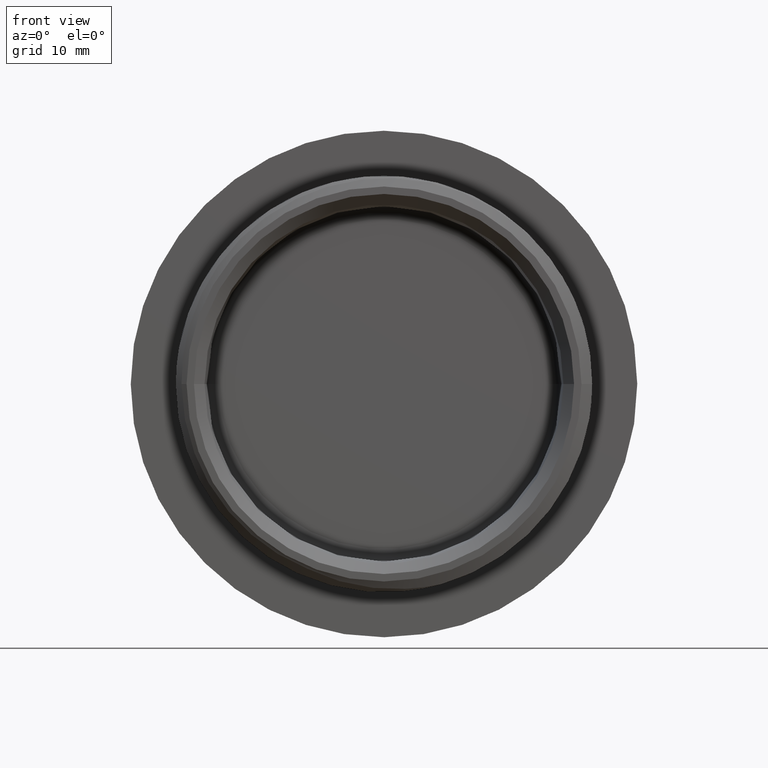
[diagram: clean part render]
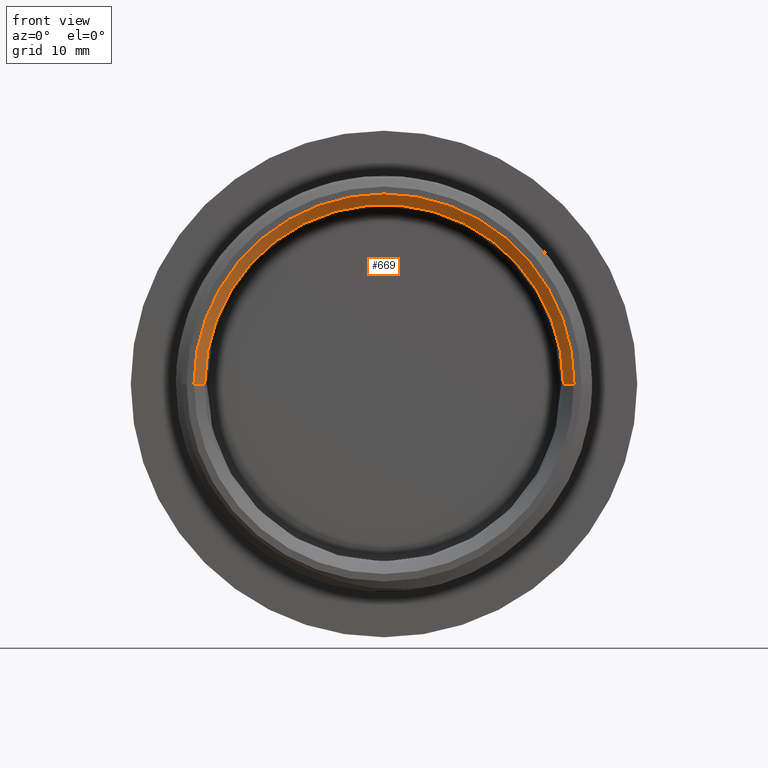
[diagram: same view with one face highlighted and labeled with its STEP entity id]
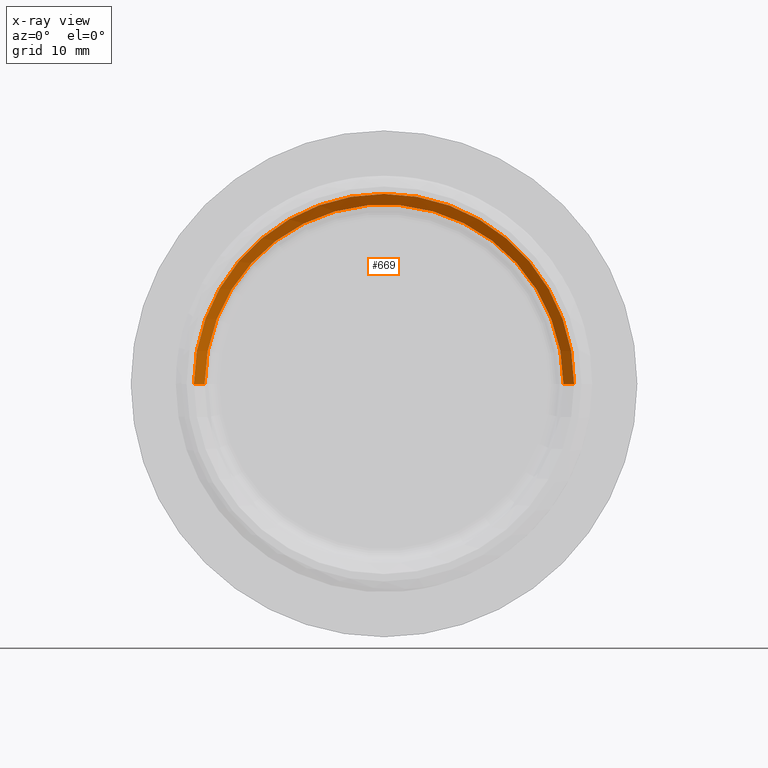
[diagram: x-ray of the same camera — body ghosted, the highlighted face saturated]
A machine part, front view. The second image highlights one B-rep face of the part: STEP entity #669.
The next image is the same camera in x-ray: the body ghosted, the highlighted face saturated — about 0% of this face is hidden behind the body in this view.
In plain terms, the highlighted conical surface has half-angle 45 deg.
Its self-contained STEP definition (entity closure, byte-faithful):
#11 = DIRECTION ( 'NONE',  ( 0.7071067811864800700, -0.7071067811866149600, 0.0000000000000000000 ) ) ;
#13 = CARTESIAN_POINT ( 'NONE',  ( 16.66067755449154200, 0.003814154013110541000, 0.0000000000000000000 ) ) ;
#73 = ORIENTED_EDGE ( 'NONE', *, *, #599, .T. ) ;
#110 = ORIENTED_EDGE ( 'NONE', *, *, #637, .F. ) ;
#114 = ORIENTED_EDGE ( 'NONE', *, *, #634, .T. ) ;
#119 = ORIENTED_EDGE ( 'NONE', *, *, #595, .F. ) ;
#224 = EDGE_LOOP ( 'NONE', ( #119, #110, #73, #114 ) ) ;
#294 = VERTEX_POINT ( 'NONE', #379 ) ;
#296 = VERTEX_POINT ( 'NONE', #322 ) ;
#305 = VERTEX_POINT ( 'NONE', #343 ) ;
#309 = VERTEX_POINT ( 'NONE', #347 ) ;
#322 = CARTESIAN_POINT ( 'NONE',  ( -16.66067755449154200, 0.003814154014696999000, 2.040344543873421700E-015 ) ) ;
#343 = CARTESIAN_POINT ( 'NONE',  ( 15.72811163497975600, 0.9363800735250759100, 0.0000000000000000000 ) ) ;
#347 = CARTESIAN_POINT ( 'NONE',  ( 16.66067755449154200, 0.003814154013110230100, 0.0000000000000000000 ) ) ;
#379 = CARTESIAN_POINT ( 'NONE',  ( -15.72811163497966500, 0.9363800735265738200, 1.926138157041014400E-015 ) ) ;
#540 = DIRECTION ( 'NONE',  ( -0.7071067811865473500, -0.7071067811865477900, 8.659560562354519900E-017 ) ) ;
#550 = LINE ( 'NONE', #567, #760 ) ;
#557 = LINE ( 'NONE', #13, #791 ) ;
#567 = CARTESIAN_POINT ( 'NONE',  ( -16.66067755449154200, 0.003814154014697309900, 2.040344543873421700E-015 ) ) ;
#595 = EDGE_CURVE ( 'NONE', #294, #296, #550, .T. ) ;
#599 = EDGE_CURVE ( 'NONE', #305, #309, #557, .T. ) ;
#634 = EDGE_CURVE ( 'NONE', #309, #296, #801, .T. ) ;
#637 = EDGE_CURVE ( 'NONE', #305, #294, #809, .T. ) ;
#669 = ADVANCED_FACE ( 'NONE', ( #1156 ), #834, .F. ) ;
#760 = VECTOR ( 'NONE', #540, 999.9999999999998900 ) ;
#791 = VECTOR ( 'NONE', #11, 1000.000000000000000 ) ;
#801 = CIRCLE ( 'NONE', #804, 16.66067755449154200 ) ;
#804 = AXIS2_PLACEMENT_3D ( 'NONE', #2046, #2098, #2143 ) ;
#809 = CIRCLE ( 'NONE', #810, 15.72811163497971000 ) ;
#810 = AXIS2_PLACEMENT_3D ( 'NONE', #2112, #2106, #2110 ) ;
#834 = CONICAL_SURFACE ( 'NONE', #836, 16.66067755449154200, 0.7853981633974005400 ) ;
#836 = AXIS2_PLACEMENT_3D ( 'NONE', #1142, #1139, #1146 ) ;
#1139 = DIRECTION ( 'NONE',  ( -4.762017744351380400E-014, -1.000000000000000000, 0.0000000000000000000 ) ) ;
#1142 = CARTESIAN_POINT ( 'NONE',  ( 4.695712035609438200E-042, 0.003814154013903925500, 0.0000000000000000000 ) ) ;
#1146 = DIRECTION ( 'NONE',  ( 1.000000000000000000, -4.762017744351379700E-014, 0.0000000000000000000 ) ) ;
#1156 = FACE_OUTER_BOUND ( 'NONE', #224, .T. ) ;
#2046 = CARTESIAN_POINT ( 'NONE',  ( -1.480326034429207400E-029, 0.003814154013903614500, 0.0000000000000000000 ) ) ;
#2098 = DIRECTION ( 'NONE',  ( -4.762017744351380400E-014, -1.000000000000000000, 0.0000000000000000000 ) ) ;
#2106 = DIRECTION ( 'NONE',  ( -4.762017744351380400E-014, -1.000000000000000000, 0.0000000000000000000 ) ) ;
#2110 = DIRECTION ( 'NONE',  ( 1.000000000000000000, -4.768167089050489500E-014, 0.0000000000000000000 ) ) ;
#2112 = CARTESIAN_POINT ( 'NONE',  ( 4.440895456493133600E-014, 0.9363800735258248600, 0.0000000000000000000 ) ) ;
#2143 = DIRECTION ( 'NONE',  ( 1.000000000000000000, -4.762017744351379700E-014, 0.0000000000000000000 ) ) ;